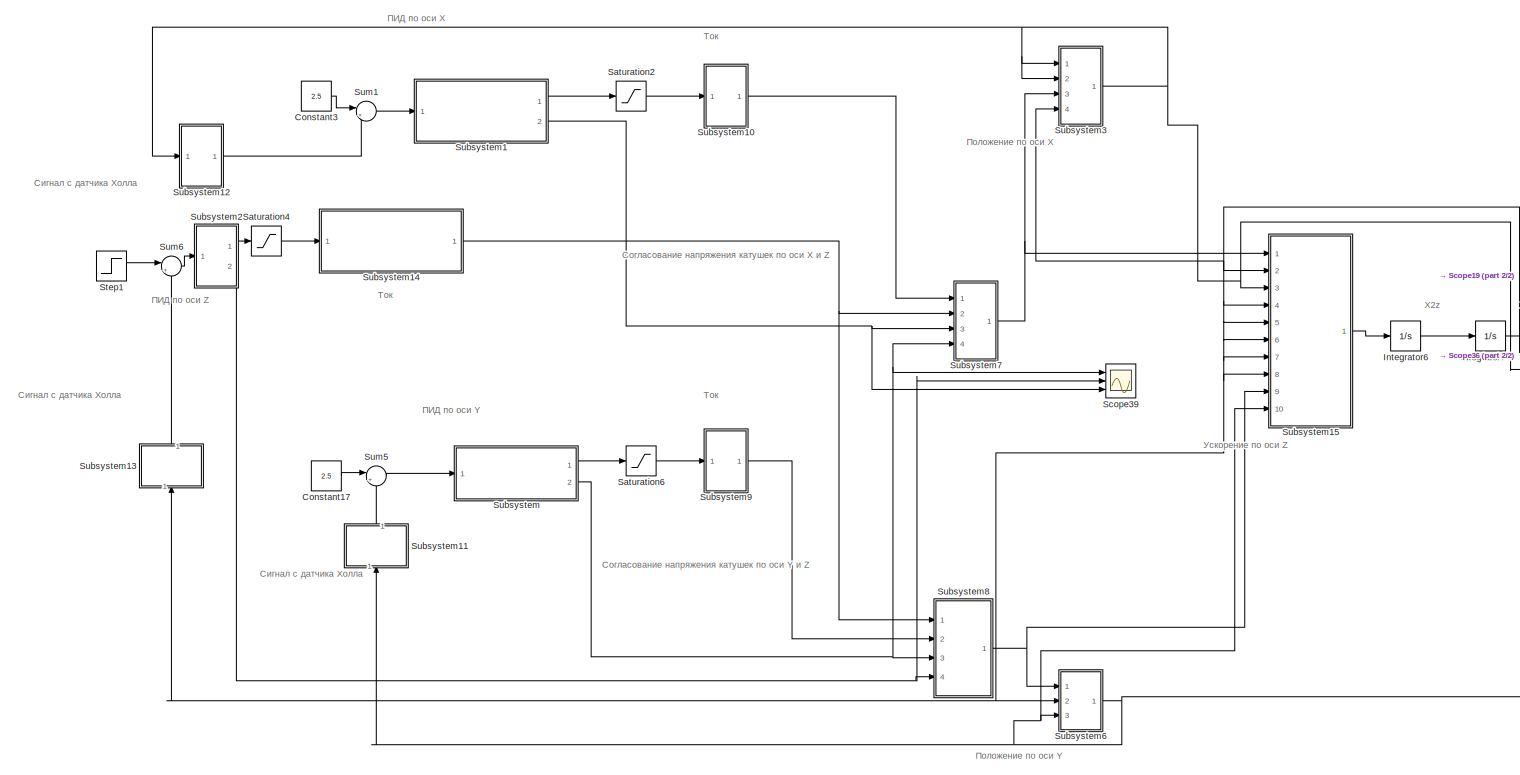
[diagram: root canvas - part 1/2, most of the canvas]
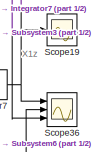
[diagram: root canvas - part 2/2, middle right region]
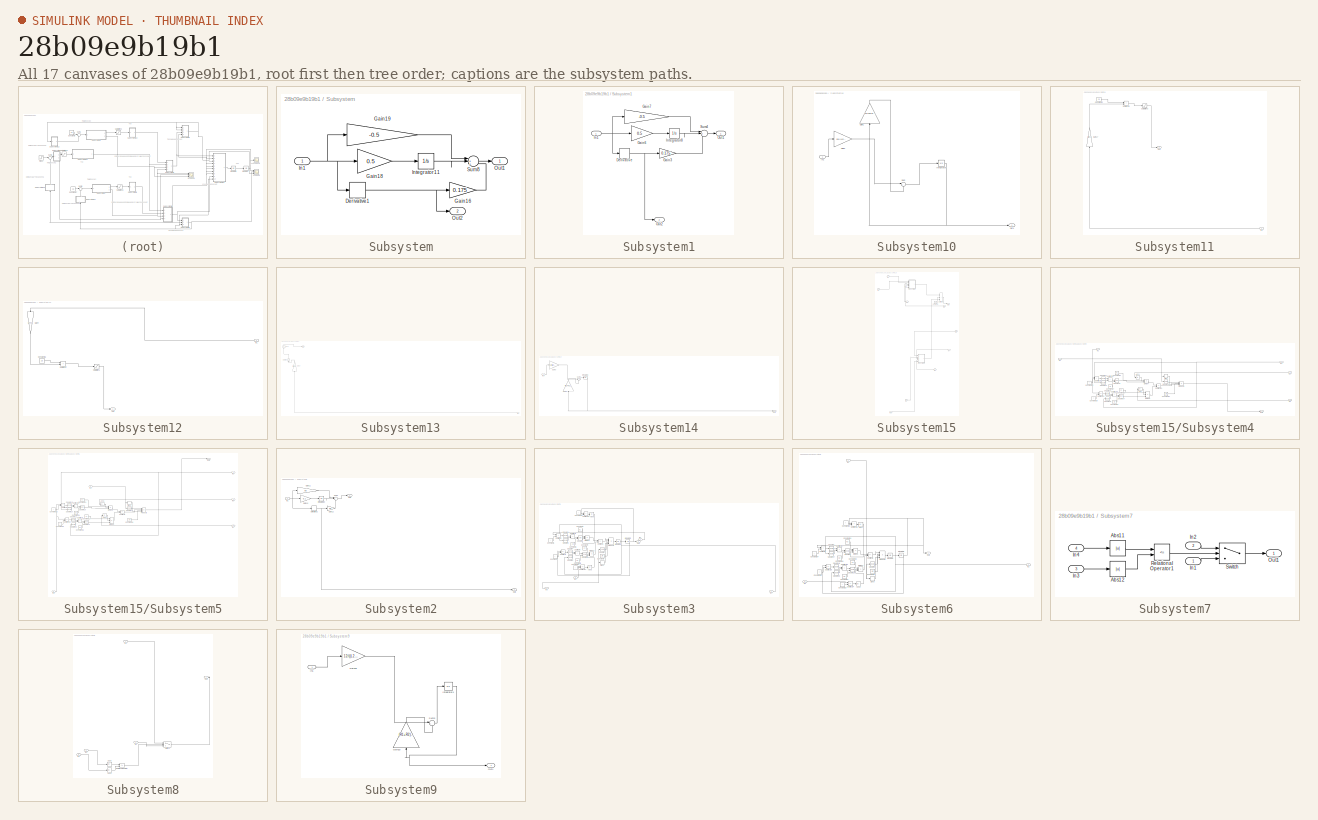
[diagram: thumbnail index - all 17 canvases of the model, root first then tree order]
MODEL mdl_28b09e9b19b1
KIND model
CONFIG AbsTol = auto
CONFIG EnableMultiTasking = off
CONFIG FixedStep = 1e-3
CONFIG MaxStep = auto
CONFIG MinStep = auto
CONFIG RelTol = 1e-3
CONFIG SampleTimeConstraint = Unconstrained
CONFIG SolverName = ode3
CONFIG StartTime = 0.0
CONFIG StopTime = 30
BLOCK [Constant] Constant17
  Value = 2.5
BLOCK [Constant] Constant3
  Value = 2.5
BLOCK [Integrator] Integrator6
  Ports = [1, 1]
BLOCK [Integrator] Integrator7
  InitialCondition = -0.03
  Ports = [1, 1]
BLOCK [Saturate] Saturation2
  LowerLimit = -5
  UpperLimit = 5
BLOCK [Saturate] Saturation4
  LowerLimit = -5
  UpperLimit = 5
BLOCK [Saturate] Saturation6
  LowerLimit = -5
  UpperLimit = 5
BLOCK [Scope] Scope19
  Floating = off
  NumInputPorts = 1
  Ports = [1]
  ScopeSpecificationString = Simulink.scopes.TimeScopeBlockCfg('CurrentConfiguration', extmgr.ConfigurationSet(extmgr.Configuration('Core','General UI',true),extmgr.Configuration('Core','Source UI',true),extmgr.Configuration('Sources','WiredSimulink',true),extmgr.Configuration('Visuals','Time Domain',true,'SerializedDisplays',{struct('MinYLimReal','-0.53969','MaxYLimReal','0.31817','YLabelReal','','MinYLimMag','0.00000','MaxY...<+1389ch>
BLOCK [Scope] Scope36
  Floating = off
  NumInputPorts = 3
  Ports = [3]
  ScopeSpecificationString = Simulink.scopes.TimeScopeBlockCfg('CurrentConfiguration', extmgr.ConfigurationSet(extmgr.Configuration('Core','General UI',true),extmgr.Configuration('Core','Source UI',true),extmgr.Configuration('Sources','WiredSimulink',true,'DataLoggingVariableName','ScopeData1'),extmgr.Configuration('Visuals','Time Domain',true,'SerializedDisplays',{struct('MinYLimReal','-0.53969','MaxYLimReal','0.31817','YLab...<+1446ch>
BLOCK [Scope] Scope39
  Floating = off
  NumInputPorts = 3
  Ports = [3]
  ScopeSpecificationString = Simulink.scopes.TimeScopeBlockCfg('CurrentConfiguration', extmgr.ConfigurationSet(extmgr.Configuration('Core','General UI',true),extmgr.Configuration('Core','Source UI',true),extmgr.Configuration('Sources','WiredSimulink',true,'DataLoggingVariableName','ScopeData4'),extmgr.Configuration('Visuals','Time Domain',true,'SerializedDisplays',{struct('MinYLimReal','-23.98217','MaxYLimReal','20.96626','YL...<+1467ch>
BLOCK [Step] Step1
  After = 3.5
  SampleTime = 0
  Time = 0
BLOCK [SubSystem] Subsystem
  Ports = [1, 2]
  RequestExecContextInheritance = off
BLOCK [Derivative] Subsystem/Derivative1
BLOCK [Gain] Subsystem/Gain16
  Gain = 0.175
BLOCK [Gain] Subsystem/Gain18
  Gain = 0.5
BLOCK [Gain] Subsystem/Gain19
  Gain = -0.5
BLOCK [Inport] Subsystem/In1
BLOCK [Integrator] Subsystem/Integrator11
  Ports = [1, 1]
BLOCK [Outport] Subsystem/Out1
BLOCK [Outport] Subsystem/Out2
  Port = 2
BLOCK [Sum] Subsystem/Sum8
  Inputs = |+++
  Ports = [3, 1]
BLOCK [SubSystem] Subsystem1
  Ports = [1, 2]
  RequestExecContextInheritance = off
BLOCK [Derivative] Subsystem1/Derivative
BLOCK [Gain] Subsystem1/Gain3
  Gain = 0.175
BLOCK [Gain] Subsystem1/Gain6
  Gain = 0.5
BLOCK [Gain] Subsystem1/Gain7
  Gain = -0.5
BLOCK [Inport] Subsystem1/In1
BLOCK [Integrator] Subsystem1/Integrator8
  Ports = [1, 1]
BLOCK [Outport] Subsystem1/Out1
BLOCK [Outport] Subsystem1/Out2
  Port = 2
BLOCK [Sum] Subsystem1/Sum4
  Inputs = |+++
  Ports = [3, 1]
BLOCK [SubSystem] Subsystem10
  Ports = [1, 1]
  RequestExecContextInheritance = off
BLOCK [Gain] Subsystem10/Gain1
  Gain = (R1+R2)/(L1+L2)
  NameLocation = right
BLOCK [Gain] Subsystem10/Gain2
  Gain = 12/((L2+L1)*5)
BLOCK [Inport] Subsystem10/In1
BLOCK [Integrator] Subsystem10/Integrator
  Ports = [1, 1]
BLOCK [Outport] Subsystem10/Out1
BLOCK [Sum] Subsystem10/Sum
  Inputs = |+-
  Ports = [2, 1]
BLOCK [SubSystem] Subsystem11
  NameLocation = right
  Ports = [1, 1]
  RequestExecContextInheritance = off
BLOCK [Constant] Subsystem11/Constant22
  Value = 2.5
BLOCK [Gain] Subsystem11/Gain17
  Gain = 5/(l*2)
  NameLocation = right
BLOCK [Inport] Subsystem11/In1
BLOCK [Outport] Subsystem11/Out1
BLOCK [Saturate] Subsystem11/Saturation3
  LowerLimit = 0
  UpperLimit = 5
BLOCK [Sum] Subsystem11/Subtract16
  IconShape = rectangular
  Ports = [2, 1]
BLOCK [SubSystem] Subsystem12
  Ports = [1, 1]
  RequestExecContextInheritance = off
BLOCK [Constant] Subsystem12/Constant35
  Value = 2.5
BLOCK [Gain] Subsystem12/Gain4
  Gain = 5/(l*2)
  NameLocation = left
BLOCK [Inport] Subsystem12/In1
BLOCK [Outport] Subsystem12/Out1
BLOCK [Saturate] Subsystem12/Saturation1
  LowerLimit = 0
  UpperLimit = 5
BLOCK [Sum] Subsystem12/Subtract27
  IconShape = rectangular
  Ports = [2, 1]
BLOCK [SubSystem] Subsystem13
  NameLocation = right
  Ports = [1, 1]
  RequestExecContextInheritance = off
BLOCK [Abs] Subsystem13/Abs10
  NameLocation = right
  SaturateOnIntegerOverflow = off
BLOCK [Gain] Subsystem13/Gain14
  Gain = (5/0.04)
  NameLocation = right
BLOCK [Inport] Subsystem13/In1
BLOCK [Outport] Subsystem13/Out1
BLOCK [Saturate] Subsystem13/Saturation5
  LowerLimit = -5
  NameLocation = right
  UpperLimit = 0
BLOCK [SubSystem] Subsystem14
  Ports = [1, 1]
  RequestExecContextInheritance = off
BLOCK [Gain] Subsystem14/Gain8
  Gain = (R1+R2)/(L1+L2)
  NameLocation = right
BLOCK [Gain] Subsystem14/Gain9
  Gain = 12/((L2+L1)*5)
BLOCK [Inport] Subsystem14/In1
BLOCK [Integrator] Subsystem14/Integrator1
  Ports = [1, 1]
BLOCK [Outport] Subsystem14/Out1
BLOCK [Sum] Subsystem14/Sum2
  Inputs = |+-
  Ports = [2, 1]
BLOCK [SubSystem] Subsystem15
  Ports = [10, 1]
  RequestExecContextInheritance = off
BLOCK [Constant] Subsystem15/Constant1
  Value = g
BLOCK [Inport] Subsystem15/In1
BLOCK [Inport] Subsystem15/In10
  Port = 10
BLOCK [Inport] Subsystem15/In2
  Port = 2
BLOCK [Inport] Subsystem15/In3
  Port = 3
BLOCK [Inport] Subsystem15/In4
  Port = 4
BLOCK [Inport] Subsystem15/In5
  Port = 5
BLOCK [Inport] Subsystem15/In6
  Port = 6
BLOCK [Inport] Subsystem15/In7
  Port = 7
BLOCK [Inport] Subsystem15/In8
  Port = 8
BLOCK [Inport] Subsystem15/In9
  Port = 9
BLOCK [Outport] Subsystem15/Out1
BLOCK [SubSystem] Subsystem15/Subsystem4
  Ports = [5, 1]
  RequestExecContextInheritance = off
BLOCK [Abs] Subsystem15/Subsystem4/Abs
  SaturateOnIntegerOverflow = off
BLOCK [Abs] Subsystem15/Subsystem4/Abs1
  SaturateOnIntegerOverflow = off
BLOCK [Constant] Subsystem15/Subsystem4/Constant25
  Value = K2
BLOCK [Constant] Subsystem15/Subsystem4/Constant26
  Value = l
BLOCK [Constant] Subsystem15/Subsystem4/Constant27
  Value = 3/2
BLOCK [Constant] Subsystem15/Subsystem4/Constant28
  Value = l
BLOCK [Constant] Subsystem15/Subsystem4/Constant29
  Value = 3/2
BLOCK [Constant] Subsystem15/Subsystem4/Constant30
  Value = 1/m
BLOCK [Constant] Subsystem15/Subsystem4/Constant33
  Value = K1
BLOCK [Product] Subsystem15/Subsystem4/Divide7
  Inputs = **/
  Ports = [3, 1]
BLOCK [Product] Subsystem15/Subsystem4/Divide8
  Inputs = **/
  Ports = [3, 1]
BLOCK [Inport] Subsystem15/Subsystem4/In1
BLOCK [Inport] Subsystem15/Subsystem4/In2
  Port = 2
BLOCK [Inport] Subsystem15/Subsystem4/In3
  Port = 3
BLOCK [Inport] Subsystem15/Subsystem4/In4
  Port = 4
BLOCK [Inport] Subsystem15/Subsystem4/In5
  Port = 5
BLOCK [Outport] Subsystem15/Subsystem4/Out1
BLOCK [Product] Subsystem15/Subsystem4/Product4
  Inputs = 4
  Ports = [4, 1]
BLOCK [Signum] Subsystem15/Subsystem4/Sign
BLOCK [Math] Subsystem15/Subsystem4/Square22
  Operator = square
  Ports = [1, 1]
BLOCK [Math] Subsystem15/Subsystem4/Square23
  Operator = square
  Ports = [1, 1]
BLOCK [Math] Subsystem15/Subsystem4/Square24
  Operator = pow
  Ports = [2, 1]
BLOCK [Math] Subsystem15/Subsystem4/Square25
  Operator = square
  Ports = [1, 1]
BLOCK [Math] Subsystem15/Subsystem4/Square26
  Operator = square
  Ports = [1, 1]
BLOCK [Math] Subsystem15/Subsystem4/Square27
  Operator = square
  Ports = [1, 1]
BLOCK [Math] Subsystem15/Subsystem4/Square28
  Operator = pow
  Ports = [2, 1]
BLOCK [Sum] Subsystem15/Subsystem4/Subtract19
  IconShape = rectangular
  Ports = [2, 1]
BLOCK [Sum] Subsystem15/Subsystem4/Subtract20
  IconShape = rectangular
  Inputs = --
  Ports = [2, 1]
BLOCK [Sum] Subsystem15/Subsystem4/Subtract21
  IconShape = rectangular
  Ports = [2, 1]
BLOCK [Sum] Subsystem15/Subsystem4/Subtract22
  IconShape = rectangular
  Ports = [2, 1]
BLOCK [Sum] Subsystem15/Subsystem4/Subtract23
  IconShape = rectangular
  Inputs = +-
  Ports = [2, 1]
BLOCK [SubSystem] Subsystem15/Subsystem5
  Ports = [5, 1]
  RequestExecContextInheritance = off
BLOCK [Abs] Subsystem15/Subsystem5/Abs4
  SaturateOnIntegerOverflow = off
BLOCK [Abs] Subsystem15/Subsystem5/Abs5
  SaturateOnIntegerOverflow = off
BLOCK [Constant] Subsystem15/Subsystem5/Constant12
  Value = K4
BLOCK [Constant] Subsystem15/Subsystem5/Constant13
  Value = l
BLOCK [Constant] Subsystem15/Subsystem5/Constant14
  Value = 3/2
BLOCK [Constant] Subsystem15/Subsystem5/Constant15
  Value = l
BLOCK [Constant] Subsystem15/Subsystem5/Constant16
  Value = 3/2
BLOCK [Constant] Subsystem15/Subsystem5/Constant18
  Value = 1/m
BLOCK [Constant] Subsystem15/Subsystem5/Constant21
  Value = K3
BLOCK [Product] Subsystem15/Subsystem5/Divide5
  Inputs = **/
  Ports = [3, 1]
BLOCK [Product] Subsystem15/Subsystem5/Divide6
  Inputs = **/
  Ports = [3, 1]
BLOCK [Inport] Subsystem15/Subsystem5/In1
BLOCK [Inport] Subsystem15/Subsystem5/In2
  Port = 2
BLOCK [Inport] Subsystem15/Subsystem5/In3
  Port = 3
BLOCK [Inport] Subsystem15/Subsystem5/In4
  Port = 4
BLOCK [Inport] Subsystem15/Subsystem5/In5
  Port = 5
BLOCK [Outport] Subsystem15/Subsystem5/Out1
BLOCK [Product] Subsystem15/Subsystem5/Product3
  Inputs = 4
  Ports = [4, 1]
BLOCK [Signum] Subsystem15/Subsystem5/Sign2
BLOCK [Math] Subsystem15/Subsystem5/Square10
  Operator = square
  Ports = [1, 1]
BLOCK [Math] Subsystem15/Subsystem5/Square11
  Operator = square
  Ports = [1, 1]
BLOCK [Math] Subsystem15/Subsystem5/Square12
  Operator = pow
  Ports = [2, 1]
BLOCK [Math] Subsystem15/Subsystem5/Square13
  Operator = square
  Ports = [1, 1]
BLOCK [Math] Subsystem15/Subsystem5/Square14
  Operator = square
  Ports = [1, 1]
BLOCK [Math] Subsystem15/Subsystem5/Square15
  Operator = square
  Ports = [1, 1]
BLOCK [Math] Subsystem15/Subsystem5/Square16
  Operator = pow
  Ports = [2, 1]
BLOCK [Sum] Subsystem15/Subsystem5/Subtract10
  IconShape = rectangular
  Ports = [2, 1]
BLOCK [Sum] Subsystem15/Subsystem5/Subtract12
  IconShape = rectangular
  Ports = [2, 1]
BLOCK [Sum] Subsystem15/Subsystem5/Subtract13
  IconShape = rectangular
  Inputs = +-
  Ports = [2, 1]
BLOCK [Sum] Subsystem15/Subsystem5/Subtract7
  IconShape = rectangular
  Ports = [2, 1]
BLOCK [Sum] Subsystem15/Subsystem5/Subtract9
  IconShape = rectangular
  Inputs = --
  Ports = [2, 1]
BLOCK [Sum] Subsystem15/Subtract11
  IconShape = rectangular
  Inputs = +++
  Ports = [3, 1]
BLOCK [SubSystem] Subsystem2
  Ports = [1, 2]
  RequestExecContextInheritance = off
BLOCK [Derivative] Subsystem2/Derivative2
BLOCK [Gain] Subsystem2/Gain11
  Gain = 50
BLOCK [Gain] Subsystem2/Gain12
  Gain = 55
BLOCK [Gain] Subsystem2/Gain13
  Gain = 0.1
BLOCK [Inport] Subsystem2/In1
BLOCK [Integrator] Subsystem2/Integrator10
  Ports = [1, 1]
BLOCK [Outport] Subsystem2/Out1
BLOCK [Outport] Subsystem2/Out2
  Port = 2
BLOCK [Sum] Subsystem2/Sum7
  Inputs = |+++
  Ports = [3, 1]
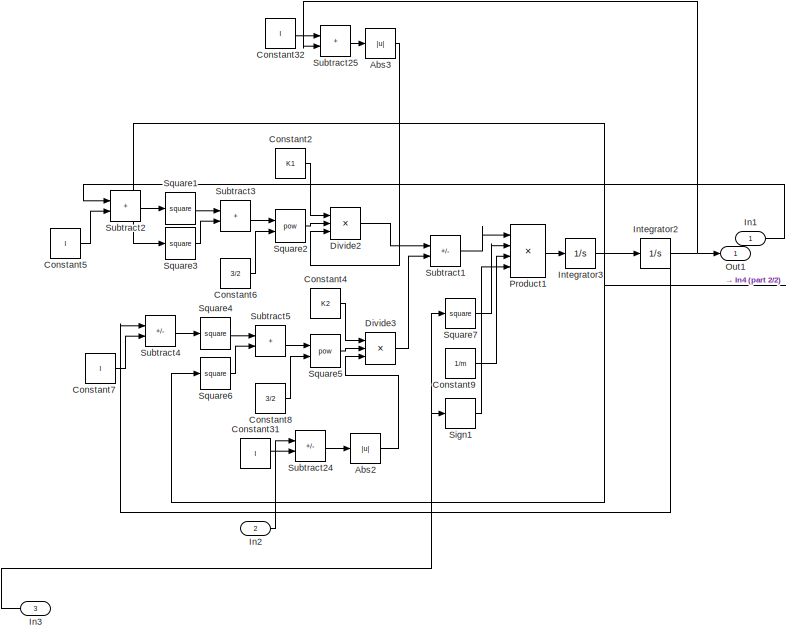
[diagram: Subsystem3 - part 1/2, left side, full height]
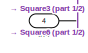
[diagram: Subsystem3 - part 2/2, bottom right region]
BLOCK [SubSystem] Subsystem3
  Ports = [4, 1]
  RequestExecContextInheritance = off
BLOCK [Abs] Subsystem3/Abs2
  SaturateOnIntegerOverflow = off
BLOCK [Abs] Subsystem3/Abs3
  SaturateOnIntegerOverflow = off
BLOCK [Constant] Subsystem3/Constant2
  Value = K1
BLOCK [Constant] Subsystem3/Constant31
  Value = l
BLOCK [Constant] Subsystem3/Constant32
  Value = l
BLOCK [Constant] Subsystem3/Constant4
  Value = K2
BLOCK [Constant] Subsystem3/Constant5
  Value = l
BLOCK [Constant] Subsystem3/Constant6
  Value = 3/2
BLOCK [Constant] Subsystem3/Constant7
  Value = l
BLOCK [Constant] Subsystem3/Constant8
  Value = 3/2
BLOCK [Constant] Subsystem3/Constant9
  Value = 1/m
BLOCK [Product] Subsystem3/Divide2
  Inputs = */*
  Ports = [3, 1]
BLOCK [Product] Subsystem3/Divide3
  Inputs = */*
  Ports = [3, 1]
BLOCK [Inport] Subsystem3/In1
BLOCK [Inport] Subsystem3/In2
  Port = 2
BLOCK [Inport] Subsystem3/In3
  Port = 3
BLOCK [Inport] Subsystem3/In4
  Port = 4
BLOCK [Integrator] Subsystem3/Integrator2
  InitialCondition = 0.008
  Ports = [1, 1]
BLOCK [Integrator] Subsystem3/Integrator3
  Ports = [1, 1]
BLOCK [Outport] Subsystem3/Out1
BLOCK [Product] Subsystem3/Product1
  Inputs = 4
  Ports = [4, 1]
BLOCK [Signum] Subsystem3/Sign1
BLOCK [Math] Subsystem3/Square1
  Operator = square
  Ports = [1, 1]
BLOCK [Math] Subsystem3/Square2
  Operator = pow
  Ports = [2, 1]
BLOCK [Math] Subsystem3/Square3
  Operator = square
  Ports = [1, 1]
BLOCK [Math] Subsystem3/Square4
  Operator = square
  Ports = [1, 1]
BLOCK [Math] Subsystem3/Square5
  Operator = pow
  Ports = [2, 1]
BLOCK [Math] Subsystem3/Square6
  Operator = square
  Ports = [1, 1]
BLOCK [Math] Subsystem3/Square7
  Operator = square
  Ports = [1, 1]
BLOCK [Sum] Subsystem3/Subtract1
  IconShape = rectangular
  Inputs = +-
  Ports = [2, 1]
BLOCK [Sum] Subsystem3/Subtract2
  IconShape = rectangular
  Ports = [2, 1]
BLOCK [Sum] Subsystem3/Subtract24
  IconShape = rectangular
  Inputs = +-
  NameLocation = top
  Ports = [2, 1]
BLOCK [Sum] Subsystem3/Subtract25
  IconShape = rectangular
  Ports = [2, 1]
BLOCK [Sum] Subsystem3/Subtract3
  IconShape = rectangular
  Ports = [2, 1]
BLOCK [Sum] Subsystem3/Subtract4
  IconShape = rectangular
  Inputs = +-
  Ports = [2, 1]
BLOCK [Sum] Subsystem3/Subtract5
  IconShape = rectangular
  Ports = [2, 1]
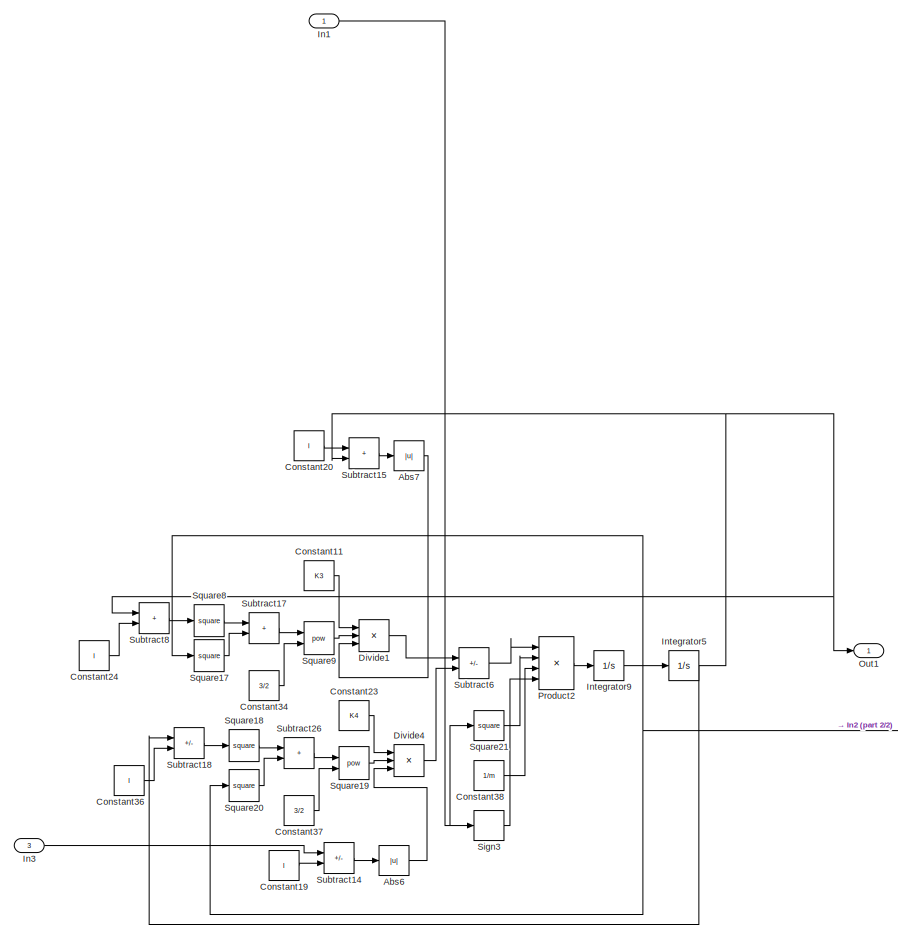
[diagram: Subsystem6 - part 1/2, left side, full height]
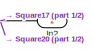
[diagram: Subsystem6 - part 2/2, bottom right region]
BLOCK [SubSystem] Subsystem6
  Ports = [3, 1]
  RequestExecContextInheritance = off
BLOCK [Abs] Subsystem6/Abs6
  SaturateOnIntegerOverflow = off
BLOCK [Abs] Subsystem6/Abs7
  SaturateOnIntegerOverflow = off
BLOCK [Constant] Subsystem6/Constant11
  Value = K3
BLOCK [Constant] Subsystem6/Constant19
  Value = l
BLOCK [Constant] Subsystem6/Constant20
  Value = l
BLOCK [Constant] Subsystem6/Constant23
  Value = K4
BLOCK [Constant] Subsystem6/Constant24
  Value = l
BLOCK [Constant] Subsystem6/Constant34
  Value = 3/2
BLOCK [Constant] Subsystem6/Constant36
  Value = l
BLOCK [Constant] Subsystem6/Constant37
  Value = 3/2
BLOCK [Constant] Subsystem6/Constant38
  Value = 1/m
BLOCK [Product] Subsystem6/Divide1
  Inputs = */*
  Ports = [3, 1]
BLOCK [Product] Subsystem6/Divide4
  Inputs = */*
  Ports = [3, 1]
BLOCK [Inport] Subsystem6/In1
BLOCK [Inport] Subsystem6/In2
  Port = 2
BLOCK [Inport] Subsystem6/In3
  Port = 3
BLOCK [Integrator] Subsystem6/Integrator5
  InitialCondition = 0.012
  Ports = [1, 1]
BLOCK [Integrator] Subsystem6/Integrator9
  Ports = [1, 1]
BLOCK [Outport] Subsystem6/Out1
BLOCK [Product] Subsystem6/Product2
  Inputs = 4
  Ports = [4, 1]
BLOCK [Signum] Subsystem6/Sign3
BLOCK [Math] Subsystem6/Square17
  Operator = square
  Ports = [1, 1]
BLOCK [Math] Subsystem6/Square18
  Operator = square
  Ports = [1, 1]
BLOCK [Math] Subsystem6/Square19
  Operator = pow
  Ports = [2, 1]
BLOCK [Math] Subsystem6/Square20
  Operator = square
  Ports = [1, 1]
BLOCK [Math] Subsystem6/Square21
  Operator = square
  Ports = [1, 1]
BLOCK [Math] Subsystem6/Square8
  Operator = square
  Ports = [1, 1]
BLOCK [Math] Subsystem6/Square9
  Operator = pow
  Ports = [2, 1]
BLOCK [Sum] Subsystem6/Subtract14
  IconShape = rectangular
  Inputs = +-
  NameLocation = top
  Ports = [2, 1]
BLOCK [Sum] Subsystem6/Subtract15
  IconShape = rectangular
  Ports = [2, 1]
BLOCK [Sum] Subsystem6/Subtract17
  IconShape = rectangular
  NameLocation = top
  Ports = [2, 1]
BLOCK [Sum] Subsystem6/Subtract18
  IconShape = rectangular
  Inputs = +-
  Ports = [2, 1]
BLOCK [Sum] Subsystem6/Subtract26
  IconShape = rectangular
  Ports = [2, 1]
BLOCK [Sum] Subsystem6/Subtract6
  IconShape = rectangular
  Inputs = +-
  Ports = [2, 1]
BLOCK [Sum] Subsystem6/Subtract8
  IconShape = rectangular
  Ports = [2, 1]
BLOCK [SubSystem] Subsystem7
  Ports = [4, 1]
  RequestExecContextInheritance = off
BLOCK [Abs] Subsystem7/Abs11
  SaturateOnIntegerOverflow = off
BLOCK [Abs] Subsystem7/Abs12
  SaturateOnIntegerOverflow = off
BLOCK [Inport] Subsystem7/In1
BLOCK [Inport] Subsystem7/In2
  Port = 2
BLOCK [Inport] Subsystem7/In3
  NameLocation = top
  Port = 3
BLOCK [Inport] Subsystem7/In4
  Port = 4
BLOCK [Outport] Subsystem7/Out1
BLOCK [RelationalOperator] Subsystem7/Relational Operator1
  InputSameDT = off
  Operator = <=
  OutDataTypeStr = boolean
  Ports = [2, 1]
  RndMeth = Simplest
BLOCK [Switch] Subsystem7/Switch
  InputSameDT = off
  SaturateOnIntegerOverflow = off
  Threshold = 0.5
BLOCK [SubSystem] Subsystem8
  Ports = [4, 1]
  RequestExecContextInheritance = off
BLOCK [Abs] Subsystem8/Abs8
  SaturateOnIntegerOverflow = off
BLOCK [Abs] Subsystem8/Abs9
  SaturateOnIntegerOverflow = off
BLOCK [Inport] Subsystem8/In1
BLOCK [Inport] Subsystem8/In2
  Port = 2
BLOCK [Inport] Subsystem8/In3
  Port = 3
BLOCK [Inport] Subsystem8/In4
  Port = 4
BLOCK [Outport] Subsystem8/Out1
BLOCK [RelationalOperator] Subsystem8/Relational Operator
  InputSameDT = off
  Operator = <=
  OutDataTypeStr = boolean
  Ports = [2, 1]
  RndMeth = Simplest
BLOCK [Switch] Subsystem8/Switch1
  Criteria = u2 > Threshold
  InputSameDT = off
  SaturateOnIntegerOverflow = off
  Threshold = 0.5
BLOCK [SubSystem] Subsystem9
  Ports = [1, 1]
  RequestExecContextInheritance = off
BLOCK [Gain] Subsystem9/Gain10
  Gain = (R1+R2)/(L1+L2)
  NameLocation = right
BLOCK [Gain] Subsystem9/Gain15
  Gain = 12/((L2+L1)*5)
BLOCK [Inport] Subsystem9/In1
BLOCK [Integrator] Subsystem9/Integrator4
  Ports = [1, 1]
BLOCK [Outport] Subsystem9/Out1
BLOCK [Sum] Subsystem9/Sum3
  Inputs = |+-
  Ports = [2, 1]
BLOCK [Sum] Sum1
  Inputs = |+-
  NameLocation = top
  Ports = [2, 1]
BLOCK [Sum] Sum5
  Inputs = |+-
  Ports = [2, 1]
BLOCK [Sum] Sum6
  Inputs = |+-
  Ports = [2, 1]
ANNOTATION (root): X1z
ANNOTATION (root): X2z
ANNOTATION (root): ПИД по оси X
ANNOTATION (root): ПИД по оси Y
ANNOTATION (root): Сигнал с датчика Холла
ANNOTATION (root): Согласование напряжения катушек по оси Y и Z
ANNOTATION (root): Ток
ANNOTATION (root): ПИД по оси Z
ANNOTATION (root): Положение по оси X
ANNOTATION (root): Положение по оси Y
ANNOTATION (root): Согласование напряжения катушек по оси X и Z
ANNOTATION (root): Ускорение по оси Z
LINE Constant17:1 -> Sum5:1
LINE Constant3:1 -> Sum1:1
LINE Integrator6:1 -> Integrator7:1
NET Integrator7:1 -> Scope19:1, Scope36:1, Subsystem13:1, Subsystem15:2, Subsystem15:4, Subsystem15:5, Subsystem15:6, Subsystem15:7, Subsystem15:8, Subsystem3:4, Subsystem6:2
LINE Saturation2:1 -> Subsystem10:1
LINE Saturation4:1 -> Subsystem14:1
LINE Saturation6:1 -> Subsystem9:1
LINE Step1:1 -> Sum6:1
NET Subsystem/Derivative1:1 -> Subsystem/Gain16:1, Subsystem/Out2:1
LINE Subsystem/Gain16:1 -> Subsystem/Sum8:3
LINE Subsystem/Gain18:1 -> Subsystem/Integrator11:1
LINE Subsystem/Gain19:1 -> Subsystem/Sum8:1
NET Subsystem/In1:1 -> Subsystem/Derivative1:1, Subsystem/Gain18:1, Subsystem/Gain19:1
LINE Subsystem/Integrator11:1 -> Subsystem/Sum8:2
LINE Subsystem/Sum8:1 -> Subsystem/Out1:1
NET Subsystem1/Derivative:1 -> Subsystem1/Gain3:1, Subsystem1/Out2:1
LINE Subsystem1/Gain3:1 -> Subsystem1/Sum4:3
LINE Subsystem1/Gain6:1 -> Subsystem1/Integrator8:1
LINE Subsystem1/Gain7:1 -> Subsystem1/Sum4:1
NET Subsystem1/In1:1 -> Subsystem1/Derivative:1, Subsystem1/Gain6:1, Subsystem1/Gain7:1
LINE Subsystem1/Integrator8:1 -> Subsystem1/Sum4:2
LINE Subsystem1/Sum4:1 -> Subsystem1/Out1:1
LINE Subsystem10/Gain1:1 -> Subsystem10/Sum:2
LINE Subsystem10/Gain2:1 -> Subsystem10/Sum:1
LINE Subsystem10/In1:1 -> Subsystem10/Gain2:1
NET Subsystem10/Integrator:1 -> Subsystem10/Gain1:1, Subsystem10/Out1:1
LINE Subsystem10/Sum:1 -> Subsystem10/Integrator:1
LINE Subsystem10:1 -> Subsystem7:1
LINE Subsystem11/Constant22:1 -> Subsystem11/Subtract16:1
LINE Subsystem11/Gain17:1 -> Subsystem11/Subtract16:2
LINE Subsystem11/In1:1 -> Subsystem11/Gain17:1
LINE Subsystem11/Saturation3:1 -> Subsystem11/Out1:1
LINE Subsystem11/Subtract16:1 -> Subsystem11/Saturation3:1
LINE Subsystem11:1 -> Sum5:2
LINE Subsystem12/Constant35:1 -> Subsystem12/Subtract27:1
LINE Subsystem12/Gain4:1 -> Subsystem12/Subtract27:2
LINE Subsystem12/In1:1 -> Subsystem12/Gain4:1
LINE Subsystem12/Saturation1:1 -> Subsystem12/Out1:1
LINE Subsystem12/Subtract27:1 -> Subsystem12/Saturation1:1
LINE Subsystem12:1 -> Sum1:2
LINE Subsystem13/Abs10:1 -> Subsystem13/Out1:1
LINE Subsystem13/Gain14:1 -> Subsystem13/Saturation5:1
LINE Subsystem13/In1:1 -> Subsystem13/Gain14:1
LINE Subsystem13/Saturation5:1 -> Subsystem13/Abs10:1
LINE Subsystem13:1 -> Sum6:2
LINE Subsystem14/Gain8:1 -> Subsystem14/Sum2:2
LINE Subsystem14/Gain9:1 -> Subsystem14/Sum2:1
LINE Subsystem14/In1:1 -> Subsystem14/Gain9:1
NET Subsystem14/Integrator1:1 -> Subsystem14/Gain8:1, Subsystem14/Out1:1
LINE Subsystem14/Sum2:1 -> Subsystem14/Integrator1:1
NET Subsystem14:1 -> Subsystem7:2, Subsystem8:1
LINE Subsystem15/Constant1:1 -> Subsystem15/Subtract11:2
LINE Subsystem15/In10:1 -> Subsystem15/Subsystem5:5
LINE Subsystem15/In1:1 -> Subsystem15/Subsystem4:2
LINE Subsystem15/In2:1 -> Subsystem15/Subsystem4:3
LINE Subsystem15/In3:1 -> Subsystem15/Subsystem4:1
LINE Subsystem15/In4:1 -> Subsystem15/Subsystem4:4
LINE Subsystem15/In5:1 -> Subsystem15/Subsystem4:5
LINE Subsystem15/In6:1 -> Subsystem15/Subsystem5:1
LINE Subsystem15/In7:1 -> Subsystem15/Subsystem5:3
LINE Subsystem15/In8:1 -> Subsystem15/Subsystem5:4
LINE Subsystem15/In9:1 -> Subsystem15/Subsystem5:2
LINE Subsystem15/Subsystem4/Abs1:1 -> Subsystem15/Subsystem4/Divide7:2
LINE Subsystem15/Subsystem4/Abs:1 -> Subsystem15/Subsystem4/Divide8:2
LINE Subsystem15/Subsystem4/Constant25:1 -> Subsystem15/Subsystem4/Divide8:1
LINE Subsystem15/Subsystem4/Constant26:1 -> Subsystem15/Subsystem4/Subtract21:2
LINE Subsystem15/Subsystem4/Constant27:1 -> Subsystem15/Subsystem4/Square28:2
LINE Subsystem15/Subsystem4/Constant28:1 -> Subsystem15/Subsystem4/Subtract23:2
LINE Subsystem15/Subsystem4/Constant29:1 -> Subsystem15/Subsystem4/Square24:2
LINE Subsystem15/Subsystem4/Constant30:1 -> Subsystem15/Subsystem4/Product4:3
LINE Subsystem15/Subsystem4/Constant33:1 -> Subsystem15/Subsystem4/Divide7:1
LINE Subsystem15/Subsystem4/Divide7:1 -> Subsystem15/Subsystem4/Subtract20:1
LINE Subsystem15/Subsystem4/Divide8:1 -> Subsystem15/Subsystem4/Subtract20:2
NET Subsystem15/Subsystem4/In1:1 -> Subsystem15/Subsystem4/Subtract21:1, Subsystem15/Subsystem4/Subtract23:1
NET Subsystem15/Subsystem4/In2:1 -> Subsystem15/Subsystem4/Sign:1, Subsystem15/Subsystem4/Square26:1
NET Subsystem15/Subsystem4/In3:1 -> Subsystem15/Subsystem4/Square22:1, Subsystem15/Subsystem4/Square25:1
LINE Subsystem15/Subsystem4/In4:1 -> Subsystem15/Subsystem4/Abs1:1
LINE Subsystem15/Subsystem4/In5:1 -> Subsystem15/Subsystem4/Abs:1
LINE Subsystem15/Subsystem4/Product4:1 -> Subsystem15/Subsystem4/Out1:1
LINE Subsystem15/Subsystem4/Sign:1 -> Subsystem15/Subsystem4/Product4:4
LINE Subsystem15/Subsystem4/Square22:1 -> Subsystem15/Subsystem4/Subtract22:2
LINE Subsystem15/Subsystem4/Square23:1 -> Subsystem15/Subsystem4/Subtract19:1
LINE Subsystem15/Subsystem4/Square24:1 -> Subsystem15/Subsystem4/Divide8:3
LINE Subsystem15/Subsystem4/Square25:1 -> Subsystem15/Subsystem4/Subtract19:2
LINE Subsystem15/Subsystem4/Square26:1 -> Subsystem15/Subsystem4/Product4:1
LINE Subsystem15/Subsystem4/Square27:1 -> Subsystem15/Subsystem4/Subtract22:1
LINE Subsystem15/Subsystem4/Square28:1 -> Subsystem15/Subsystem4/Divide7:3
LINE Subsystem15/Subsystem4/Subtract19:1 -> Subsystem15/Subsystem4/Square24:1
LINE Subsystem15/Subsystem4/Subtract20:1 -> Subsystem15/Subsystem4/Product4:2
LINE Subsystem15/Subsystem4/Subtract21:1 -> Subsystem15/Subsystem4/Square27:1
LINE Subsystem15/Subsystem4/Subtract22:1 -> Subsystem15/Subsystem4/Square28:1
LINE Subsystem15/Subsystem4/Subtract23:1 -> Subsystem15/Subsystem4/Square23:1
LINE Subsystem15/Subsystem4:1 -> Subsystem15/Subtract11:1
LINE Subsystem15/Subsystem5/Abs4:1 -> Subsystem15/Subsystem5/Divide6:2
LINE Subsystem15/Subsystem5/Abs5:1 -> Subsystem15/Subsystem5/Divide5:2
LINE Subsystem15/Subsystem5/Constant12:1 -> Subsystem15/Subsystem5/Divide6:1
LINE Subsystem15/Subsystem5/Constant13:1 -> Subsystem15/Subsystem5/Subtract10:2
LINE Subsystem15/Subsystem5/Constant14:1 -> Subsystem15/Subsystem5/Square16:2
LINE Subsystem15/Subsystem5/Constant15:1 -> Subsystem15/Subsystem5/Subtract13:2
LINE Subsystem15/Subsystem5/Constant16:1 -> Subsystem15/Subsystem5/Square12:2
LINE Subsystem15/Subsystem5/Constant18:1 -> Subsystem15/Subsystem5/Product3:3
LINE Subsystem15/Subsystem5/Constant21:1 -> Subsystem15/Subsystem5/Divide5:1
LINE Subsystem15/Subsystem5/Divide5:1 -> Subsystem15/Subsystem5/Subtract9:1
LINE Subsystem15/Subsystem5/Divide6:1 -> Subsystem15/Subsystem5/Subtract9:2
NET Subsystem15/Subsystem5/In1:1 -> Subsystem15/Subsystem5/Square10:1, Subsystem15/Subsystem5/Square13:1
NET Subsystem15/Subsystem5/In2:1 -> Subsystem15/Subsystem5/Sign2:1, Subsystem15/Subsystem5/Square14:1
LINE Subsystem15/Subsystem5/In3:1 -> Subsystem15/Subsystem5/Abs5:1
LINE Subsystem15/Subsystem5/In4:1 -> Subsystem15/Subsystem5/Abs4:1
NET Subsystem15/Subsystem5/In5:1 -> Subsystem15/Subsystem5/Subtract10:1, Subsystem15/Subsystem5/Subtract13:1
LINE Subsystem15/Subsystem5/Product3:1 -> Subsystem15/Subsystem5/Out1:1
LINE Subsystem15/Subsystem5/Sign2:1 -> Subsystem15/Subsystem5/Product3:4
LINE Subsystem15/Subsystem5/Square10:1 -> Subsystem15/Subsystem5/Subtract12:2
LINE Subsystem15/Subsystem5/Square11:1 -> Subsystem15/Subsystem5/Subtract7:1
LINE Subsystem15/Subsystem5/Square12:1 -> Subsystem15/Subsystem5/Divide6:3
LINE Subsystem15/Subsystem5/Square13:1 -> Subsystem15/Subsystem5/Subtract7:2
LINE Subsystem15/Subsystem5/Square14:1 -> Subsystem15/Subsystem5/Product3:1
LINE Subsystem15/Subsystem5/Square15:1 -> Subsystem15/Subsystem5/Subtract12:1
LINE Subsystem15/Subsystem5/Square16:1 -> Subsystem15/Subsystem5/Divide5:3
LINE Subsystem15/Subsystem5/Subtract10:1 -> Subsystem15/Subsystem5/Square15:1
LINE Subsystem15/Subsystem5/Subtract12:1 -> Subsystem15/Subsystem5/Square16:1
LINE Subsystem15/Subsystem5/Subtract13:1 -> Subsystem15/Subsystem5/Square11:1
LINE Subsystem15/Subsystem5/Subtract7:1 -> Subsystem15/Subsystem5/Square12:1
LINE Subsystem15/Subsystem5/Subtract9:1 -> Subsystem15/Subsystem5/Product3:2
LINE Subsystem15/Subsystem5:1 -> Subsystem15/Subtract11:3
LINE Subsystem15/Subtract11:1 -> Subsystem15/Out1:1
LINE Subsystem15:1 -> Integrator6:1
LINE Subsystem1:1 -> Saturation2:1
NET Subsystem1:2 -> Scope39:3, Subsystem7:3
NET Subsystem2/Derivative2:1 -> Subsystem2/Gain12:1, Subsystem2/Out2:1
LINE Subsystem2/Gain11:1 -> Subsystem2/Sum7:1
LINE Subsystem2/Gain12:1 -> Subsystem2/Sum7:3
LINE Subsystem2/Gain13:1 -> Subsystem2/Integrator10:1
NET Subsystem2/In1:1 -> Subsystem2/Derivative2:1, Subsystem2/Gain11:1, Subsystem2/Gain13:1
LINE Subsystem2/Integrator10:1 -> Subsystem2/Sum7:2
LINE Subsystem2/Sum7:1 -> Subsystem2/Out1:1
LINE Subsystem2:1 -> Saturation4:1
NET Subsystem2:2 -> Scope39:2, Subsystem8:4
LINE Subsystem3/Abs2:1 -> Subsystem3/Divide3:3
LINE Subsystem3/Abs3:1 -> Subsystem3/Divide2:3
LINE Subsystem3/Constant2:1 -> Subsystem3/Divide2:1
LINE Subsystem3/Constant31:1 -> Subsystem3/Subtract24:2
LINE Subsystem3/Constant32:1 -> Subsystem3/Subtract25:1
LINE Subsystem3/Constant4:1 -> Subsystem3/Divide3:1
LINE Subsystem3/Constant5:1 -> Subsystem3/Subtract2:2
LINE Subsystem3/Constant6:1 -> Subsystem3/Square2:2
LINE Subsystem3/Constant7:1 -> Subsystem3/Subtract4:2
LINE Subsystem3/Constant8:1 -> Subsystem3/Square5:2
LINE Subsystem3/Constant9:1 -> Subsystem3/Product1:3
LINE Subsystem3/Divide2:1 -> Subsystem3/Subtract1:1
LINE Subsystem3/Divide3:1 -> Subsystem3/Subtract1:2
LINE Subsystem3/In1:1 -> Subsystem3/Subtract2:1
LINE Subsystem3/In2:1 -> Subsystem3/Subtract24:1
NET Subsystem3/In3:1 -> Subsystem3/Sign1:1, Subsystem3/Square7:1
NET Subsystem3/In4:1 -> Subsystem3/Square3:1, Subsystem3/Square6:1
NET Subsystem3/Integrator2:1 -> Subsystem3/Out1:1, Subsystem3/Subtract25:2, Subsystem3/Subtract4:1
LINE Subsystem3/Integrator3:1 -> Subsystem3/Integrator2:1
LINE Subsystem3/Product1:1 -> Subsystem3/Integrator3:1
LINE Subsystem3/Sign1:1 -> Subsystem3/Product1:4
LINE Subsystem3/Square1:1 -> Subsystem3/Subtract3:1
LINE Subsystem3/Square2:1 -> Subsystem3/Divide2:2
LINE Subsystem3/Square3:1 -> Subsystem3/Subtract3:2
LINE Subsystem3/Square4:1 -> Subsystem3/Subtract5:1
LINE Subsystem3/Square5:1 -> Subsystem3/Divide3:2
LINE Subsystem3/Square6:1 -> Subsystem3/Subtract5:2
LINE Subsystem3/Square7:1 -> Subsystem3/Product1:2
LINE Subsystem3/Subtract1:1 -> Subsystem3/Product1:1
LINE Subsystem3/Subtract24:1 -> Subsystem3/Abs2:1
LINE Subsystem3/Subtract25:1 -> Subsystem3/Abs3:1
LINE Subsystem3/Subtract2:1 -> Subsystem3/Square1:1
LINE Subsystem3/Subtract3:1 -> Subsystem3/Square2:1
LINE Subsystem3/Subtract4:1 -> Subsystem3/Square4:1
LINE Subsystem3/Subtract5:1 -> Subsystem3/Square5:1
NET Subsystem3:1 -> Scope36:3, Subsystem12:1, Subsystem15:3, Subsystem3:1, Subsystem3:2
LINE Subsystem6/Abs6:1 -> Subsystem6/Divide4:3
LINE Subsystem6/Abs7:1 -> Subsystem6/Divide1:3
LINE Subsystem6/Constant11:1 -> Subsystem6/Divide1:1
LINE Subsystem6/Constant19:1 -> Subsystem6/Subtract14:2
LINE Subsystem6/Constant20:1 -> Subsystem6/Subtract15:1
LINE Subsystem6/Constant23:1 -> Subsystem6/Divide4:1
LINE Subsystem6/Constant24:1 -> Subsystem6/Subtract8:2
LINE Subsystem6/Constant34:1 -> Subsystem6/Square9:2
LINE Subsystem6/Constant36:1 -> Subsystem6/Subtract18:2
LINE Subsystem6/Constant37:1 -> Subsystem6/Square19:2
LINE Subsystem6/Constant38:1 -> Subsystem6/Product2:3
LINE Subsystem6/Divide1:1 -> Subsystem6/Subtract6:1
LINE Subsystem6/Divide4:1 -> Subsystem6/Subtract6:2
NET Subsystem6/In1:1 -> Subsystem6/Sign3:1, Subsystem6/Square21:1
NET Subsystem6/In2:1 -> Subsystem6/Square17:1, Subsystem6/Square20:1
LINE Subsystem6/In3:1 -> Subsystem6/Subtract14:1
NET Subsystem6/Integrator5:1 -> Subsystem6/Out1:1, Subsystem6/Subtract15:2, Subsystem6/Subtract18:1, Subsystem6/Subtract8:1
LINE Subsystem6/Integrator9:1 -> Subsystem6/Integrator5:1
LINE Subsystem6/Product2:1 -> Subsystem6/Integrator9:1
LINE Subsystem6/Sign3:1 -> Subsystem6/Product2:4
LINE Subsystem6/Square17:1 -> Subsystem6/Subtract17:2
LINE Subsystem6/Square18:1 -> Subsystem6/Subtract26:1
LINE Subsystem6/Square19:1 -> Subsystem6/Divide4:2
LINE Subsystem6/Square20:1 -> Subsystem6/Subtract26:2
LINE Subsystem6/Square21:1 -> Subsystem6/Product2:2
LINE Subsystem6/Square8:1 -> Subsystem6/Subtract17:1
LINE Subsystem6/Square9:1 -> Subsystem6/Divide1:2
LINE Subsystem6/Subtract14:1 -> Subsystem6/Abs6:1
LINE Subsystem6/Subtract15:1 -> Subsystem6/Abs7:1
LINE Subsystem6/Subtract17:1 -> Subsystem6/Square9:1
LINE Subsystem6/Subtract18:1 -> Subsystem6/Square18:1
LINE Subsystem6/Subtract26:1 -> Subsystem6/Square19:1
LINE Subsystem6/Subtract6:1 -> Subsystem6/Product2:1
LINE Subsystem6/Subtract8:1 -> Subsystem6/Square8:1
NET Subsystem6:1 -> Scope36:2, Subsystem11:1, Subsystem15:10, Subsystem6:3
LINE Subsystem7/Abs11:1 -> Subsystem7/Relational Operator1:1
LINE Subsystem7/Abs12:1 -> Subsystem7/Relational Operator1:2
LINE Subsystem7/In1:1 -> Subsystem7/Switch:3
LINE Subsystem7/In2:1 -> Subsystem7/Switch:1
LINE Subsystem7/In3:1 -> Subsystem7/Abs12:1
LINE Subsystem7/In4:1 -> Subsystem7/Abs11:1
LINE Subsystem7/Relational Operator1:1 -> Subsystem7/Switch:2
LINE Subsystem7/Switch:1 -> Subsystem7/Out1:1
NET Subsystem7:1 -> Subsystem15:1, Subsystem3:3
LINE Subsystem8/Abs8:1 -> Subsystem8/Relational Operator:1
LINE Subsystem8/Abs9:1 -> Subsystem8/Relational Operator:2
LINE Subsystem8/In1:1 -> Subsystem8/Switch1:1
LINE Subsystem8/In2:1 -> Subsystem8/Switch1:3
LINE Subsystem8/In3:1 -> Subsystem8/Abs8:1
LINE Subsystem8/In4:1 -> Subsystem8/Abs9:1
LINE Subsystem8/Relational Operator:1 -> Subsystem8/Switch1:2
LINE Subsystem8/Switch1:1 -> Subsystem8/Out1:1
NET Subsystem8:1 -> Subsystem15:9, Subsystem6:1
LINE Subsystem9/Gain10:1 -> Subsystem9/Sum3:2
LINE Subsystem9/Gain15:1 -> Subsystem9/Sum3:1
LINE Subsystem9/In1:1 -> Subsystem9/Gain15:1
NET Subsystem9/Integrator4:1 -> Subsystem9/Gain10:1, Subsystem9/Out1:1
LINE Subsystem9/Sum3:1 -> Subsystem9/Integrator4:1
LINE Subsystem9:1 -> Subsystem8:2
LINE Subsystem:1 -> Saturation6:1
NET Subsystem:2 -> Scope39:1, Subsystem7:4, Subsystem8:3
LINE Sum1:1 -> Subsystem1:1
LINE Sum5:1 -> Subsystem:1
LINE Sum6:1 -> Subsystem2:1
note: NET lines group one-source signal fan-out (src -> all destinations, sorted); 1:1 wires keep LINE
